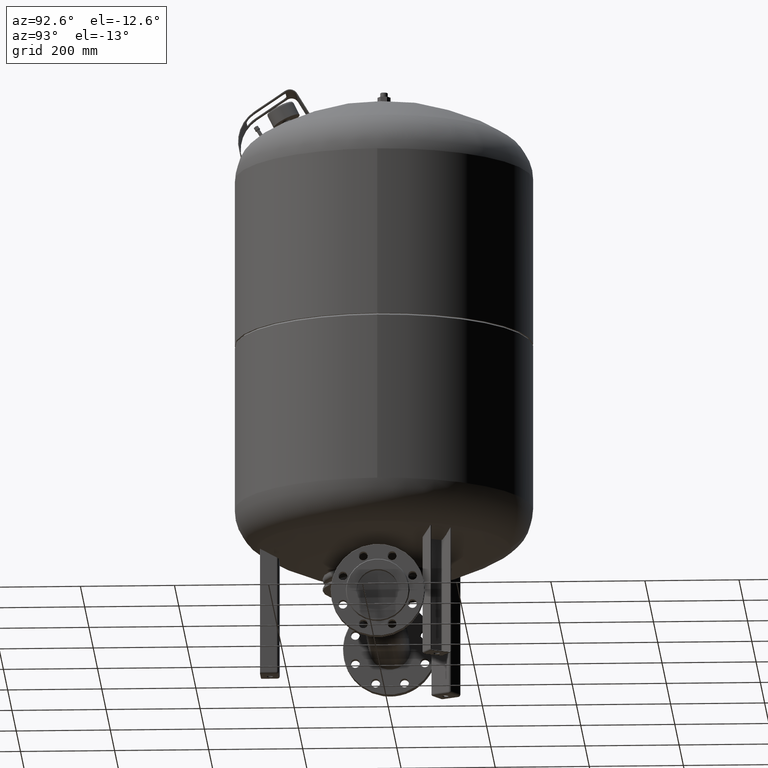
[diagram: clean part render]
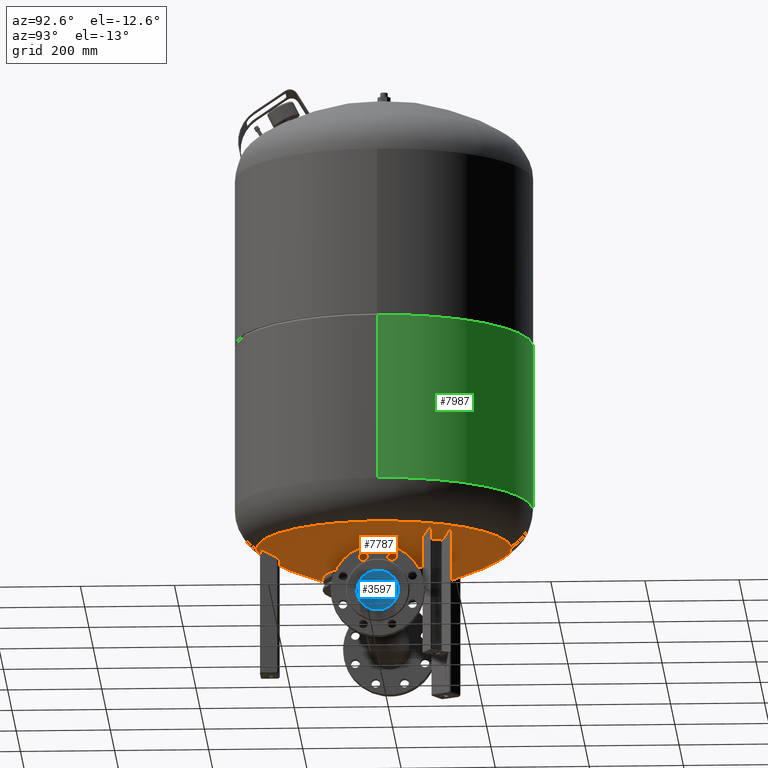
[diagram: same view with three faces highlighted in distinct colors, each labeled with its STEP entity id]
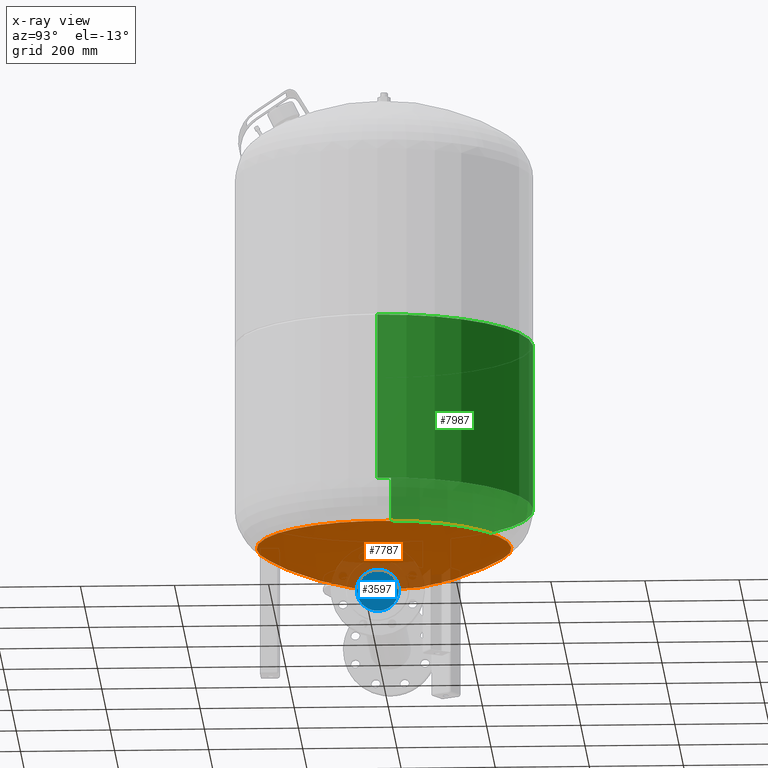
[diagram: x-ray of the same camera — body ghosted, the three highlighted faces saturated]
A machine part, auxiliary view with three faces highlighted in distinct colors.
The next image is the same camera in x-ray (body ghosted, the three faces saturated) — at least one of them is partly hidden behind the body in this view.
Their STEP definitions:

[orange] entity #7787 — the highlighted spherical surface has radius 509 mm.
#7726=CARTESIAN_POINT('',(8.065826E-015,-270.639024390243830,275.913560318702370));
#7727=VERTEX_POINT('',#7726);
#7743=CARTESIAN_POINT('',(-2.507680E-014,270.639024390243830,275.913560318702480));
#7744=VERTEX_POINT('',#7743);
#7752=CARTESIAN_POINT('',(-270.639024390243830,-1.431249E-014,275.913560318702420));
#7753=VERTEX_POINT('',#7752);
#7754=CARTESIAN_POINT('',(-7.495146E-015,-1.431249E-014,275.913560318702420));
#7755=DIRECTION('',(0.0,0.0,1.0));
#7756=DIRECTION('',(-1.0,0.0,0.0));
#7757=AXIS2_PLACEMENT_3D('',#7754,#7755,#7756);
#7758=CIRCLE('',#7757,270.639024390243830);
#7759=EDGE_CURVE('',#7744,#7753,#7758,.T.);
#7761=CARTESIAN_POINT('',(-7.495146E-015,-1.431249E-014,275.913560318702420));
#7762=DIRECTION('',(0.0,0.0,1.0));
#7763=DIRECTION('',(-1.0,0.0,0.0));
#7764=AXIS2_PLACEMENT_3D('',#7761,#7762,#7763);
#7765=CIRCLE('',#7764,270.639024390243830);
#7766=EDGE_CURVE('',#7753,#7727,#7765,.T.);
#7771=CARTESIAN_POINT('',(-1.005746E-013,-9.350178E-014,707.0));
#7772=DIRECTION('',(0.0,-1.0,0.0));
#7773=DIRECTION('',(1.0,0.0,0.0));
#7774=AXIS2_PLACEMENT_3D('',#7771,#7772,#7773);
#7775=SPHERICAL_SURFACE('',#7774,509.000000000000060);
#7776=ORIENTED_EDGE('',*,*,#7766,.F.);
#7777=ORIENTED_EDGE('',*,*,#7759,.F.);
#7778=CARTESIAN_POINT('',(-7.495146E-015,-1.431249E-014,275.913560318702420));
#7779=DIRECTION('',(0.0,0.0,1.0));
#7780=DIRECTION('',(-1.0,0.0,0.0));
#7781=AXIS2_PLACEMENT_3D('',#7778,#7779,#7780);
#7782=CIRCLE('',#7781,270.639024390243830);
#7783=EDGE_CURVE('',#7727,#7744,#7782,.T.);
#7784=ORIENTED_EDGE('',*,*,#7783,.F.);
#7785=EDGE_LOOP('',(#7776,#7777,#7784));
#7786=FACE_OUTER_BOUND('',#7785,.T.);
#7787=ADVANCED_FACE('',(#7786),#7775,.T.);

[blue] entity #3597 — the highlighted face is a freeform B-spline surface patch.
#3342=CARTESIAN_POINT('',(290.0,-44.450000000000003,120.000000000000010));
#3343=VERTEX_POINT('',#3342);
#3359=CARTESIAN_POINT('',(290.0,44.450000000000003,120.000000000000010));
#3360=VERTEX_POINT('',#3359);
#3367=CARTESIAN_POINT('',(290.0,0.0,120.000000000000010));
#3368=DIRECTION('',(-1.0,0.0,0.0));
#3369=DIRECTION('',(0.0,-1.0,0.0));
#3370=AXIS2_PLACEMENT_3D('',#3367,#3368,#3369);
#3371=CIRCLE('',#3370,44.450000000000003);
#3372=EDGE_CURVE('',#3360,#3343,#3371,.T.);
#3582=CARTESIAN_POINT('',(290.0,44.450000000000003,164.450000000000020));
#3583=CARTESIAN_POINT('',(290.0,-44.450000000000003,164.450000000000020));
#3584=CARTESIAN_POINT('',(290.0,44.450000000000003,75.550000000000011));
#3585=CARTESIAN_POINT('',(290.0,-44.450000000000003,75.550000000000011));
#3586=B_SPLINE_SURFACE_WITH_KNOTS('',1,1,((#3582,#3584),(#3583,#3585)),.UNSPECIFIED.,.F.,.F.,.U.,(2,2),(2,2),(0.0,88.900000000000006),(0.0,88.900000000000006),.UNSPECIFIED.);
#3587=CARTESIAN_POINT('',(290.0,0.0,120.000000000000010));
#3588=DIRECTION('',(-1.0,0.0,0.0));
#3589=DIRECTION('',(0.0,-1.0,0.0));
#3590=AXIS2_PLACEMENT_3D('',#3587,#3588,#3589);
#3591=CIRCLE('',#3590,44.450000000000003);
#3592=EDGE_CURVE('',#3343,#3360,#3591,.T.);
#3593=ORIENTED_EDGE('',*,*,#3592,.F.);
#3594=ORIENTED_EDGE('',*,*,#3372,.F.);
#3595=EDGE_LOOP('',(#3593,#3594));
#3596=FACE_OUTER_BOUND('',#3595,.T.);
#3597=ADVANCED_FACE('',(#3596),#3586,.T.);

[green] entity #7987 — the highlighted cylindrical surface (partial cylindrical patch) has radius 317 mm, axis along (0, 0, 1).
#7887=CARTESIAN_POINT('',(316.999999999999830,0.0,714.500000000000000));
#7888=VERTEX_POINT('',#7887);
#7904=CARTESIAN_POINT('',(-316.999999999999940,-3.882002E-014,714.500000000000000));
#7905=VERTEX_POINT('',#7904);
#7927=CARTESIAN_POINT('',(317.0,0.0,359.999999999999830));
#7928=VERTEX_POINT('',#7927);
#7929=CARTESIAN_POINT('',(316.999999999999830,0.0,714.500000000000000));
#7930=DIRECTION('',(0.0,0.0,-1.0));
#7931=VECTOR('',#7930,354.500000000000170);
#7932=LINE('',#7929,#7931);
#7933=EDGE_CURVE('',#7888,#7928,#7932,.T.);
#7936=CARTESIAN_POINT('',(-316.999999999999940,-3.882002E-014,359.999999999999890));
#7937=VERTEX_POINT('',#7936);
#7938=CARTESIAN_POINT('',(-316.999999999999940,-3.882002E-014,714.500000000000000));
#7939=DIRECTION('',(0.0,0.0,-1.0));
#7940=VECTOR('',#7939,354.500000000000110);
#7941=LINE('',#7938,#7940);
#7942=EDGE_CURVE('',#7905,#7937,#7941,.T.);
#7959=CARTESIAN_POINT('',(-1.668796E-014,0.0,359.999999999999830));
#7960=DIRECTION('',(0.0,0.0,1.0));
#7961=DIRECTION('',(1.0,0.0,0.0));
#7962=AXIS2_PLACEMENT_3D('',#7959,#7960,#7961);
#7963=CIRCLE('',#7962,317.0);
#7964=EDGE_CURVE('',#7928,#7937,#7963,.T.);
#7970=CARTESIAN_POINT('',(-9.262287E-015,0.0,519.299999999999950));
#7971=DIRECTION('',(4.661443E-017,0.0,1.0));
#7972=DIRECTION('',(1.0,0.0,0.0));
#7973=AXIS2_PLACEMENT_3D('',#7970,#7971,#7972);
#7974=CYLINDRICAL_SURFACE('',#7973,316.999999999999940);
#7975=ORIENTED_EDGE('',*,*,#7933,.T.);
#7976=ORIENTED_EDGE('',*,*,#7964,.T.);
#7977=ORIENTED_EDGE('',*,*,#7942,.F.);
#7978=CARTESIAN_POINT('',(-1.631505E-016,0.0,714.500000000000000));
#7979=DIRECTION('',(0.0,0.0,1.0));
#7980=DIRECTION('',(1.0,0.0,0.0));
#7981=AXIS2_PLACEMENT_3D('',#7978,#7979,#7980);
#7982=CIRCLE('',#7981,316.999999999999830);
#7983=EDGE_CURVE('',#7888,#7905,#7982,.T.);
#7984=ORIENTED_EDGE('',*,*,#7983,.F.);
#7985=EDGE_LOOP('',(#7975,#7976,#7977,#7984));
#7986=FACE_OUTER_BOUND('',#7985,.T.);
#7987=ADVANCED_FACE('',(#7986),#7974,.T.);